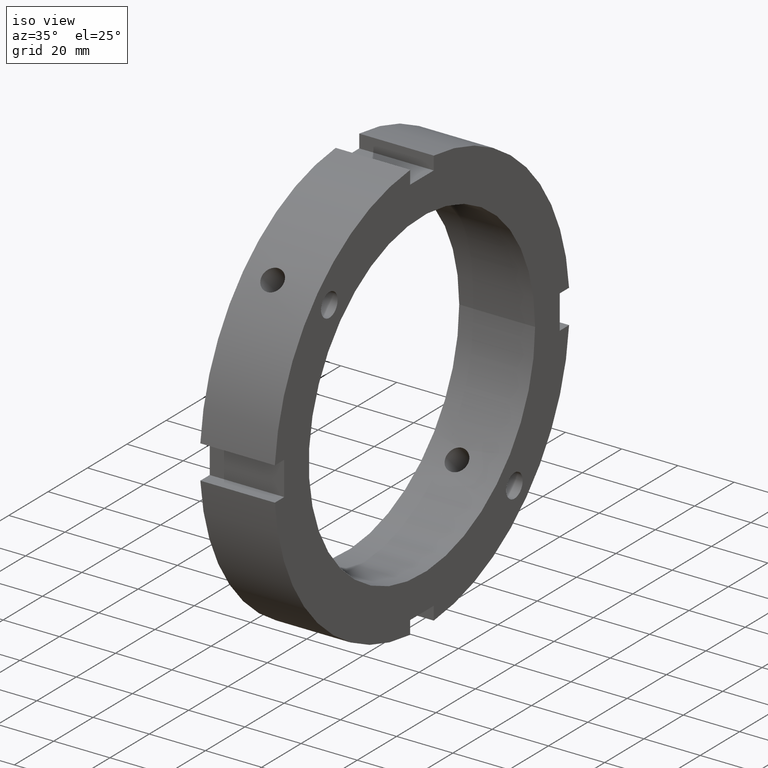
[diagram: clean part render]
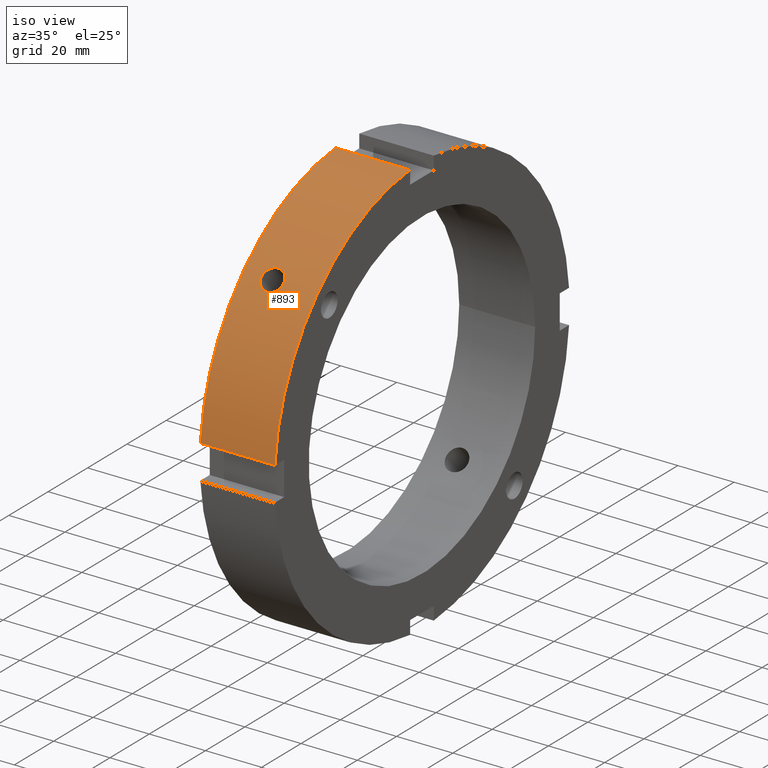
[diagram: same view with one face highlighted and labeled with its STEP entity id]
A machine part, iso view. The second image highlights one B-rep face of the part: STEP entity #893.
In plain terms, the highlighted cylindrical surface (partial cylindrical patch) has radius 75 mm, axis along (1, 0, 0).
Its self-contained STEP definition (entity closure, byte-faithful):
#209=CARTESIAN_POINT('',(10.999999999999982,-55.752478410006205,50.166334838632494));
#210=VERTEX_POINT('',#209);
#211=CARTESIAN_POINT('',(10.999999999999982,-55.752478410006191,50.166334838632508));
#212=CARTESIAN_POINT('',(10.503930676845254,-55.752478410006191,50.166334838632508));
#213=CARTESIAN_POINT('',(9.974858666449755,-55.686206447258122,50.240293973320114));
#214=CARTESIAN_POINT('',(9.001687453386499,-55.415029825469738,50.539244121828432));
#215=CARTESIAN_POINT('',(8.557580470002794,-55.20992871937743,50.764031543704426));
#216=CARTESIAN_POINT('',(7.856276049832351,-54.732512110911635,51.27840915759586));
#217=CARTESIAN_POINT('',(7.552298888038028,-54.428318220698102,51.602277445046845));
#218=CARTESIAN_POINT('',(7.149158323944112,-53.75405529948771,52.3042866379744));
#219=CARTESIAN_POINT('',(7.049999999999983,-53.383782480091796,52.682234697890323));
#220=CARTESIAN_POINT('',(7.049999999999983,-52.68223469789028,53.383782480091845));
#221=CARTESIAN_POINT('',(7.14915832394412,-52.304286637974357,53.754055299487732));
#222=CARTESIAN_POINT('',(7.55229888803803,-51.602277445046809,54.428318220698131));
#223=CARTESIAN_POINT('',(7.856276049832351,-51.278409157595831,54.732512110911671));
#224=CARTESIAN_POINT('',(8.557580470002792,-50.764031543704377,55.209928719377473));
#225=CARTESIAN_POINT('',(9.001687453386509,-50.539244121828389,55.415029825469787));
#226=CARTESIAN_POINT('',(9.974858666449762,-50.240293973320078,55.686206447258172));
#227=CARTESIAN_POINT('',(10.503930676845254,-50.166334838632466,55.75247841000624));
#228=CARTESIAN_POINT('',(11.496069323154714,-50.166334838632466,55.75247841000624));
#229=CARTESIAN_POINT('',(12.025141333550211,-50.240293973320078,55.686206447258158));
#230=CARTESIAN_POINT('',(12.998312546613464,-50.539244121828389,55.415029825469773));
#231=CARTESIAN_POINT('',(13.442419529997176,-50.764031543704377,55.209928719377473));
#232=CARTESIAN_POINT('',(14.143723950167617,-51.278409157595831,54.732512110911671));
#233=CARTESIAN_POINT('',(14.447701111961937,-51.602277445046809,54.428318220698131));
#234=CARTESIAN_POINT('',(14.850841676055849,-52.304286637974357,53.754055299487732));
#235=CARTESIAN_POINT('',(14.949999999999983,-52.68223469789028,53.383782480091845));
#236=CARTESIAN_POINT('',(14.949999999999983,-53.383782480091796,52.682234697890323));
#237=CARTESIAN_POINT('',(14.85084167605585,-53.754055299487689,52.3042866379744));
#238=CARTESIAN_POINT('',(14.447701111961941,-54.428318220698095,51.602277445046852));
#239=CARTESIAN_POINT('',(14.143723950167617,-54.732512110911635,51.278409157595874));
#240=CARTESIAN_POINT('',(13.442419529997171,-55.20992871937743,50.764031543704426));
#241=CARTESIAN_POINT('',(12.998312546613466,-55.415029825469738,50.539244121828432));
#242=CARTESIAN_POINT('',(12.025141333550216,-55.686206447258122,50.240293973320114));
#243=CARTESIAN_POINT('',(11.496069323154712,-55.752478410006191,50.166334838632508));
#244=CARTESIAN_POINT('',(10.999999999999982,-55.752478410006191,50.166334838632508));
#245=B_SPLINE_CURVE_WITH_KNOTS('',3,(#211,#212,#213,#214,#215,#216,#217,#218,#219,#220,#221,#222,#223,#224,#225,#226,#227,#228,#229,#230,#231,#232,#233,#234,#235,#236,#237,#238,#239,#240,#241,#242,#243,#244),.UNSPECIFIED.,.T.,.U.,(4,2,2,2,2,2,2,2,2,2,2,2,2,2,2,2,4),(0.0,0.148820796946419,0.297641593892837,0.446462352129161,0.595283110365485,0.744103868601809,0.892924626838133,1.041745423784552,1.19056622073097,1.339387017677389,1.488207814623808,1.637028572860132,1.785849331096456,1.93467008933278,2.083490847569104,2.232311644515522,2.381132441461941),.UNSPECIFIED.);
#246=EDGE_CURVE('',#210,#210,#245,.T.);
#637=CARTESIAN_POINT('',(0.49999999999998,-74.759614766262672,6.000000000000005));
#638=VERTEX_POINT('',#637);
#653=CARTESIAN_POINT('',(26.999999999999986,-74.759614766262672,6.000000000000006));
#654=VERTEX_POINT('',#653);
#661=CARTESIAN_POINT('',(0.49999999999998,-74.759614766262672,6.000000000000005));
#662=DIRECTION('',(1.0,0.0,0.0));
#663=VECTOR('',#662,26.500000000000007);
#664=LINE('',#661,#663);
#665=EDGE_CURVE('',#638,#654,#664,.T.);
#777=CARTESIAN_POINT('',(0.49999999999998,-5.999999999999993,74.759614766262672));
#778=VERTEX_POINT('',#777);
#787=CARTESIAN_POINT('',(26.999999999999986,-5.999999999999992,74.759614766262672));
#788=VERTEX_POINT('',#787);
#789=CARTESIAN_POINT('',(26.999999999999986,-5.999999999999993,74.759614766262672));
#790=DIRECTION('',(-1.0,0.0,0.0));
#791=VECTOR('',#790,26.500000000000007);
#792=LINE('',#789,#791);
#793=EDGE_CURVE('',#788,#778,#792,.T.);
#867=CARTESIAN_POINT('',(13.749999999999982,0.0,0.0));
#868=DIRECTION('',(1.0,0.0,0.0));
#869=DIRECTION('',(0.0,1.0,0.0));
#870=AXIS2_PLACEMENT_3D('',#867,#868,#869);
#871=CYLINDRICAL_SURFACE('',#870,75.0);
#872=ORIENTED_EDGE('',*,*,#665,.T.);
#873=CARTESIAN_POINT('',(26.999999999999986,0.0,0.0));
#874=DIRECTION('',(1.0,0.0,0.0));
#875=DIRECTION('',(0.0,1.0,0.0));
#876=AXIS2_PLACEMENT_3D('',#873,#874,#875);
#877=CIRCLE('',#876,75.0);
#878=EDGE_CURVE('',#788,#654,#877,.T.);
#879=ORIENTED_EDGE('',*,*,#878,.F.);
#880=ORIENTED_EDGE('',*,*,#793,.T.);
#881=CARTESIAN_POINT('',(0.49999999999998,0.0,0.0));
#882=DIRECTION('',(1.0,0.0,0.0));
#883=DIRECTION('',(0.0,1.0,0.0));
#884=AXIS2_PLACEMENT_3D('',#881,#882,#883);
#885=CIRCLE('',#884,75.0);
#886=EDGE_CURVE('',#778,#638,#885,.T.);
#887=ORIENTED_EDGE('',*,*,#886,.T.);
#888=EDGE_LOOP('',(#872,#879,#880,#887));
#889=FACE_OUTER_BOUND('',#888,.T.);
#890=ORIENTED_EDGE('',*,*,#246,.T.);
#891=EDGE_LOOP('',(#890));
#892=FACE_BOUND('',#891,.T.);
#893=ADVANCED_FACE('',(#889,#892),#871,.T.);